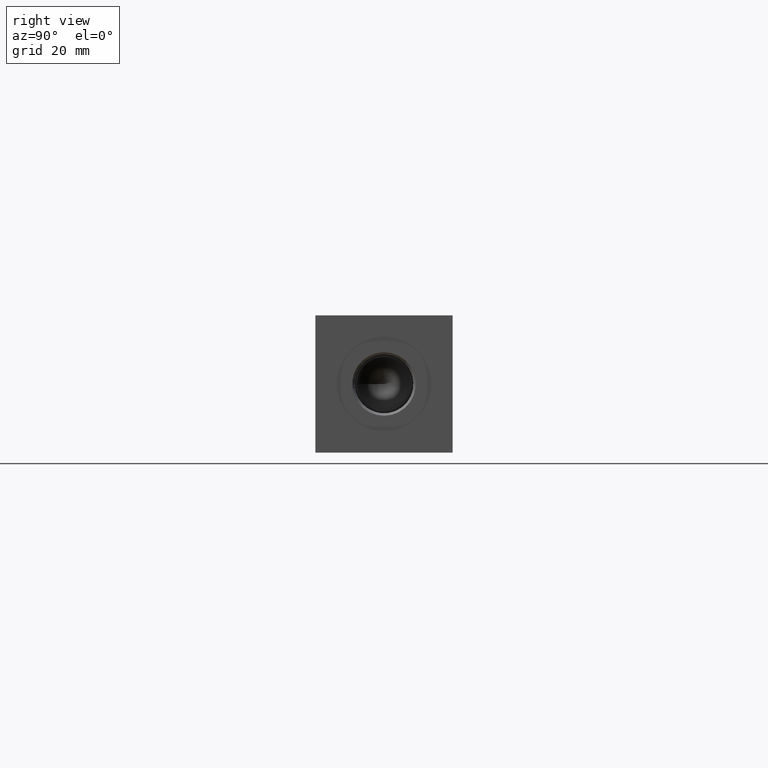
[diagram: clean part render]
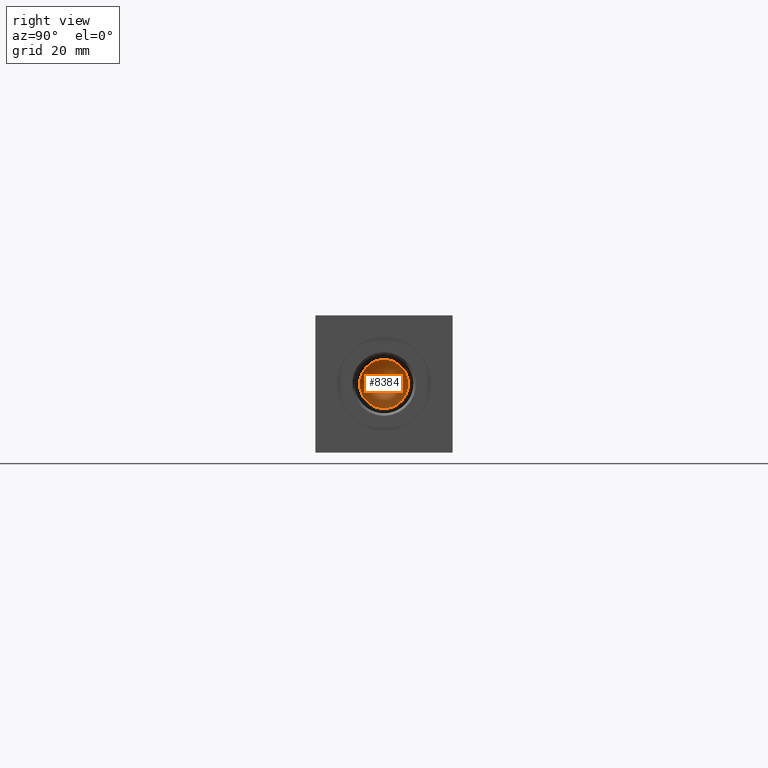
[diagram: same view with one face highlighted and labeled with its STEP entity id]
A machine part, right view. The second image highlights one B-rep face of the part: STEP entity #8384.
In plain terms, the highlighted conical surface has half-angle 60 deg.
Its self-contained STEP definition (entity closure, byte-faithful):
#65=CONICAL_SURFACE('',#8901,3.96875,1.0471975511966);
#287=CIRCLE('',#8902,7.9375);
#288=CIRCLE('',#8903,7.9375);
#1153=FACE_OUTER_BOUND('',#1642,.T.);
#1642=EDGE_LOOP('',(#7284,#7285,#7286,#7287));
#2381=LINE('',#14592,#3102);
#3102=VECTOR('',#10620,3.96875);
#3868=VERTEX_POINT('',#14588);
#3869=VERTEX_POINT('',#14589);
#3870=VERTEX_POINT('',#14591);
#5023=EDGE_CURVE('',#3868,#3869,#287,.T.);
#5024=EDGE_CURVE('',#3869,#3870,#2381,.T.);
#5025=EDGE_CURVE('',#3869,#3868,#288,.T.);
#7284=ORIENTED_EDGE('',*,*,#5023,.T.);
#7285=ORIENTED_EDGE('',*,*,#5024,.T.);
#7286=ORIENTED_EDGE('',*,*,#5024,.F.);
#7287=ORIENTED_EDGE('',*,*,#5025,.T.);
#8384=ADVANCED_FACE('',(#1153),#65,.F.);
#8901=AXIS2_PLACEMENT_3D('',#14587,#10616,#10617);
#8902=AXIS2_PLACEMENT_3D('',#14590,#10618,#10619);
#8903=AXIS2_PLACEMENT_3D('',#14593,#10621,#10622);
#10616=DIRECTION('center_axis',(1.,0.,0.));
#10617=DIRECTION('ref_axis',(0.,1.,0.));
#10618=DIRECTION('center_axis',(1.,0.,0.));
#10619=DIRECTION('ref_axis',(0.,1.,0.));
#10620=DIRECTION('',(-0.5,0.866025403784439,1.06057523872491E-16));
#10621=DIRECTION('center_axis',(1.,0.,0.));
#10622=DIRECTION('ref_axis',(0.,1.,0.));
#14587=CARTESIAN_POINT('Origin',(203.085721119154,22.225,22.225));
#14588=CARTESIAN_POINT('',(205.37708,30.1625,22.225));
#14589=CARTESIAN_POINT('',(205.37708,14.2875,22.225));
#14590=CARTESIAN_POINT('Origin',(205.37708,22.225,22.225));
#14591=CARTESIAN_POINT('',(200.794362238307,22.225,22.225));
#14592=CARTESIAN_POINT('',(203.085721119154,18.25625,22.225));
#14593=CARTESIAN_POINT('Origin',(205.37708,22.225,22.225));